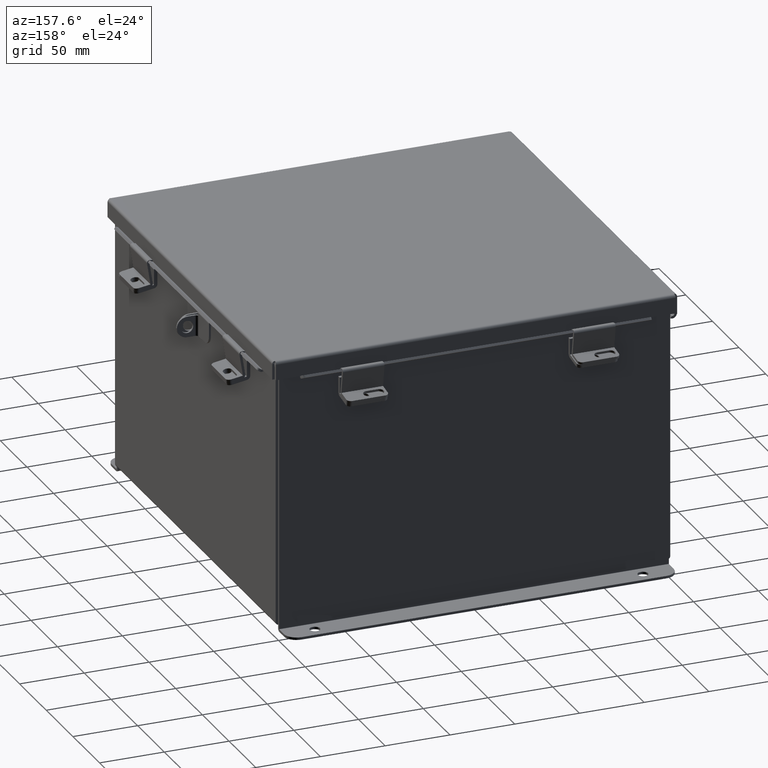
[diagram: clean part render]
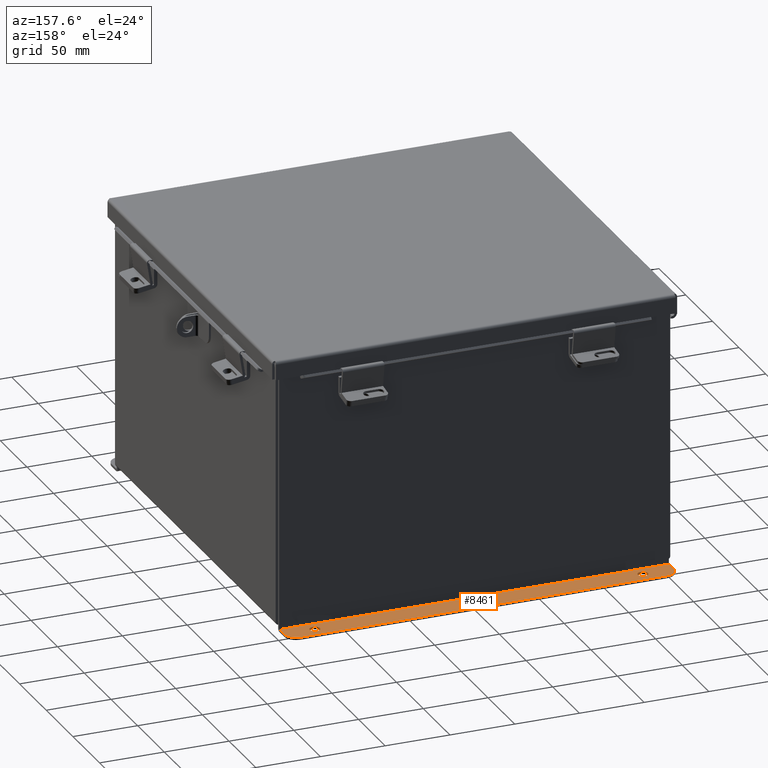
[diagram: same view with one face highlighted and labeled with its STEP entity id]
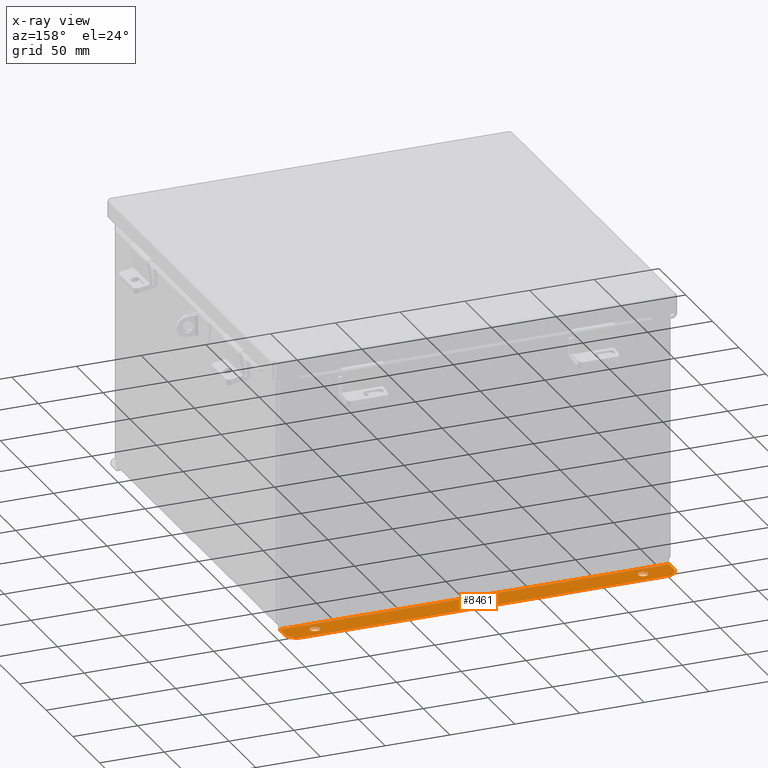
[diagram: x-ray of the same camera — body ghosted, the highlighted face saturated]
A machine part, auxiliary view. The second image highlights one B-rep face of the part: STEP entity #8461.
The next image is the same camera in x-ray: the body ghosted, the highlighted face saturated — about 0% of this face is hidden behind the body in this view.
In plain terms, the highlighted planar face has unit normal (0, 0, 1).
Its self-contained STEP definition (entity closure, byte-faithful):
#6 = EDGE_CURVE ( 'NONE', #10071, #11153, #1374, .T. ) ;
#65 = AXIS2_PLACEMENT_3D ( 'NONE', #382, #9844, #1724 ) ;
#192 = ORIENTED_EDGE ( 'NONE', *, *, #13899, .T. ) ;
#244 = CIRCLE ( 'NONE', #65, 0.1560000000000001700 ) ;
#302 = DIRECTION ( 'NONE',  ( 0.0000000000000000000, -1.000000000000000000, 3.502369222646487400E-015 ) ) ;
#303 = ORIENTED_EDGE ( 'NONE', *, *, #1713, .F. ) ;
#382 = CARTESIAN_POINT ( 'NONE',  ( -4.987800000000000900, 0.3628000000000001800, -4.112300000000002100 ) ) ;
#433 = CARTESIAN_POINT ( 'NONE',  ( 4.987799999999998200, 0.3628000000000001800, -4.112300000000002100 ) ) ;
#716 = ORIENTED_EDGE ( 'NONE', *, *, #13227, .T. ) ;
#969 = LINE ( 'NONE', #8494, #11776 ) ;
#1258 = VECTOR ( 'NONE', #7962, 39.37007874015748100 ) ;
#1263 = CIRCLE ( 'NONE', #2110, 0.1560000000000001700 ) ;
#1374 = CIRCLE ( 'NONE', #1854, 0.3750000000000000600 ) ;
#1587 = AXIS2_PLACEMENT_3D ( 'NONE', #13571, #5485, #14949 ) ;
#1713 = EDGE_CURVE ( 'NONE', #1774, #14247, #5987, .T. ) ;
#1724 = DIRECTION ( 'NONE',  ( 0.0000000000000000000, -1.000000000000000000, 3.502369222646487400E-015 ) ) ;
#1736 = CARTESIAN_POINT ( 'NONE',  ( 5.550299999999999100, 0.7378000000000002300, -4.112300000000003800 ) ) ;
#1772 = FACE_BOUND ( 'NONE', #4945, .T. ) ;
#1774 = VERTEX_POINT ( 'NONE', #7615 ) ;
#1787 = DIRECTION ( 'NONE',  ( 0.0000000000000000000, -1.000000000000000000, 3.502369222646487400E-015 ) ) ;
#1804 = VERTEX_POINT ( 'NONE', #13117 ) ;
#1854 = AXIS2_PLACEMENT_3D ( 'NONE', #3130, #7826, #3815 ) ;
#1894 = EDGE_CURVE ( 'NONE', #3707, #2887, #5699, .T. ) ;
#2037 = ORIENTED_EDGE ( 'NONE', *, *, #6, .T. ) ;
#2110 = AXIS2_PLACEMENT_3D ( 'NONE', #16514, #8415, #302 ) ;
#2382 = VECTOR ( 'NONE', #8865, 39.37007874015748100 ) ;
#2510 = DIRECTION ( 'NONE',  ( -0.0000000000000000000, -3.702694488566362300E-015, -1.000000000000000000 ) ) ;
#2526 = LINE ( 'NONE', #14581, #9730 ) ;
#2887 = VERTEX_POINT ( 'NONE', #8410 ) ;
#3130 = CARTESIAN_POINT ( 'NONE',  ( -5.550299999999999100, 0.3628000000000002900, -4.112300000000002100 ) ) ;
#3513 = VERTEX_POINT ( 'NONE', #12003 ) ;
#3533 = ORIENTED_EDGE ( 'NONE', *, *, #11341, .F. ) ;
#3650 = AXIS2_PLACEMENT_3D ( 'NONE', #433, #9909, #1787 ) ;
#3707 = VERTEX_POINT ( 'NONE', #6973 ) ;
#3815 = DIRECTION ( 'NONE',  ( 0.0000000000000000000, -1.000000000000000000, 4.370956789862820400E-015 ) ) ;
#3819 = EDGE_CURVE ( 'NONE', #3513, #1774, #969, .T. ) ;
#4534 = CARTESIAN_POINT ( 'NONE',  ( -4.987800000000000900, 0.2067999999999999800, -4.112300000000001200 ) ) ;
#4919 = CARTESIAN_POINT ( 'NONE',  ( -5.550299999999999100, 0.7378000000000002300, -4.112300000000003800 ) ) ;
#4945 = EDGE_LOOP ( 'NONE', ( #716, #192 ) ) ;
#4953 = AXIS2_PLACEMENT_3D ( 'NONE', #10628, #2510, #11988 ) ;
#5015 = PLANE ( 'NONE',  #7616 ) ;
#5363 = ORIENTED_EDGE ( 'NONE', *, *, #3819, .F. ) ;
#5485 = DIRECTION ( 'NONE',  ( 0.0000000000000000000, 3.702694488566362300E-015, 1.000000000000000000 ) ) ;
#5699 = CIRCLE ( 'NONE', #4953, 0.1560000000000001700 ) ;
#5810 = FACE_OUTER_BOUND ( 'NONE', #11203, .T. ) ;
#5987 = LINE ( 'NONE', #14239, #2382 ) ;
#6370 = DIRECTION ( 'NONE',  ( 0.0000000000000000000, -1.000000000000000000, 3.702694488566362300E-015 ) ) ;
#6433 = ORIENTED_EDGE ( 'NONE', *, *, #15981, .T. ) ;
#6649 = ORIENTED_EDGE ( 'NONE', *, *, #10964, .F. ) ;
#6927 = VERTEX_POINT ( 'NONE', #1736 ) ;
#6973 = CARTESIAN_POINT ( 'NONE',  ( 4.987799999999998200, 0.5188000000000003700, -4.112300000000002100 ) ) ;
#7615 = CARTESIAN_POINT ( 'NONE',  ( 5.925299999999999100, 0.01300000000000018200, -4.112300000000001200 ) ) ;
#7616 = AXIS2_PLACEMENT_3D ( 'NONE', #11750, #14472, #6370 ) ;
#7826 = DIRECTION ( 'NONE',  ( 0.0000000000000000000, 3.702694488566362300E-015, 1.000000000000000000 ) ) ;
#7832 = DIRECTION ( 'NONE',  ( 1.000000000000000000, -0.0000000000000000000, -0.0000000000000000000 ) ) ;
#7962 = DIRECTION ( 'NONE',  ( -0.0000000000000000000, 1.000000000000000000, -3.702694488566362300E-015 ) ) ;
#8136 = EDGE_CURVE ( 'NONE', #3513, #6927, #16831, .T. ) ;
#8410 = CARTESIAN_POINT ( 'NONE',  ( 4.987799999999998200, 0.2067999999999999800, -4.112300000000001200 ) ) ;
#8415 = DIRECTION ( 'NONE',  ( -0.0000000000000000000, -3.702694488566362300E-015, -1.000000000000000000 ) ) ;
#8461 = ADVANCED_FACE ( 'NONE', ( #1772, #12594, #5810 ), #5015, .T. ) ;
#8494 = CARTESIAN_POINT ( 'NONE',  ( 5.925299999999999100, 1.577762228432578300E-017, -4.112300000000001200 ) ) ;
#8865 = DIRECTION ( 'NONE',  ( -1.000000000000000000, -4.610480471308228800E-017, 1.707120063075582100E-031 ) ) ;
#9730 = VECTOR ( 'NONE', #7832, 39.37007874015748100 ) ;
#9844 = DIRECTION ( 'NONE',  ( -0.0000000000000000000, -3.702694488566362300E-015, -1.000000000000000000 ) ) ;
#9909 = DIRECTION ( 'NONE',  ( -0.0000000000000000000, -3.702694488566362300E-015, -1.000000000000000000 ) ) ;
#10056 = EDGE_LOOP ( 'NONE', ( #13458, #6433 ) ) ;
#10071 = VERTEX_POINT ( 'NONE', #4919 ) ;
#10628 = CARTESIAN_POINT ( 'NONE',  ( 4.987799999999998200, 0.3628000000000001800, -4.112300000000002100 ) ) ;
#10964 = EDGE_CURVE ( 'NONE', #14247, #11153, #15250, .T. ) ;
#11153 = VERTEX_POINT ( 'NONE', #12814 ) ;
#11203 = EDGE_LOOP ( 'NONE', ( #5363, #13148, #3533, #2037, #6649, #303 ) ) ;
#11217 = DIRECTION ( 'NONE',  ( -0.0000000000000000000, -1.000000000000000000, 3.702694488566362300E-015 ) ) ;
#11341 = EDGE_CURVE ( 'NONE', #10071, #6927, #2526, .T. ) ;
#11750 = CARTESIAN_POINT ( 'NONE',  ( 0.0000000000000000000, -1.453418667596954500E-014, -4.112300000000001200 ) ) ;
#11776 = VECTOR ( 'NONE', #11217, 39.37007874015748100 ) ;
#11988 = DIRECTION ( 'NONE',  ( 0.0000000000000000000, -1.000000000000000000, 3.502369222646487400E-015 ) ) ;
#12003 = CARTESIAN_POINT ( 'NONE',  ( 5.925299999999999100, 0.3628000000000002300, -4.112300000000002100 ) ) ;
#12594 = FACE_BOUND ( 'NONE', #10056, .T. ) ;
#12636 = VERTEX_POINT ( 'NONE', #4534 ) ;
#12814 = CARTESIAN_POINT ( 'NONE',  ( -5.925300000000001800, 0.3628000000000002900, -4.112300000000002100 ) ) ;
#13117 = CARTESIAN_POINT ( 'NONE',  ( -4.987800000000000900, 0.5188000000000003700, -4.112300000000002100 ) ) ;
#13148 = ORIENTED_EDGE ( 'NONE', *, *, #8136, .T. ) ;
#13227 = EDGE_CURVE ( 'NONE', #1804, #12636, #244, .T. ) ;
#13458 = ORIENTED_EDGE ( 'NONE', *, *, #1894, .T. ) ;
#13571 = CARTESIAN_POINT ( 'NONE',  ( 5.550299999999999100, 0.3628000000000002300, -4.112300000000002100 ) ) ;
#13899 = EDGE_CURVE ( 'NONE', #12636, #1804, #1263, .T. ) ;
#14239 = CARTESIAN_POINT ( 'NONE',  ( 5.925299999999999100, 0.01300000000000010700, -4.112300000000001200 ) ) ;
#14247 = VERTEX_POINT ( 'NONE', #16264 ) ;
#14472 = DIRECTION ( 'NONE',  ( 0.0000000000000000000, 3.702694488566362300E-015, 1.000000000000000000 ) ) ;
#14581 = CARTESIAN_POINT ( 'NONE',  ( 5.925299999999999100, 0.7378000000000002300, -4.112300000000003800 ) ) ;
#14949 = DIRECTION ( 'NONE',  ( 0.0000000000000000000, -1.000000000000000000, 4.370956789862820400E-015 ) ) ;
#15250 = LINE ( 'NONE', #16070, #1258 ) ;
#15618 = CIRCLE ( 'NONE', #3650, 0.1560000000000001700 ) ;
#15981 = EDGE_CURVE ( 'NONE', #2887, #3707, #15618, .T. ) ;
#16070 = CARTESIAN_POINT ( 'NONE',  ( -5.925300000000001800, 0.7378000000000002300, -4.112300000000003800 ) ) ;
#16264 = CARTESIAN_POINT ( 'NONE',  ( -5.925300000000000000, 0.01299999999999920800, -4.112300000000001200 ) ) ;
#16514 = CARTESIAN_POINT ( 'NONE',  ( -4.987800000000000900, 0.3628000000000001800, -4.112300000000002100 ) ) ;
#16831 = CIRCLE ( 'NONE', #1587, 0.3750000000000000600 ) ;